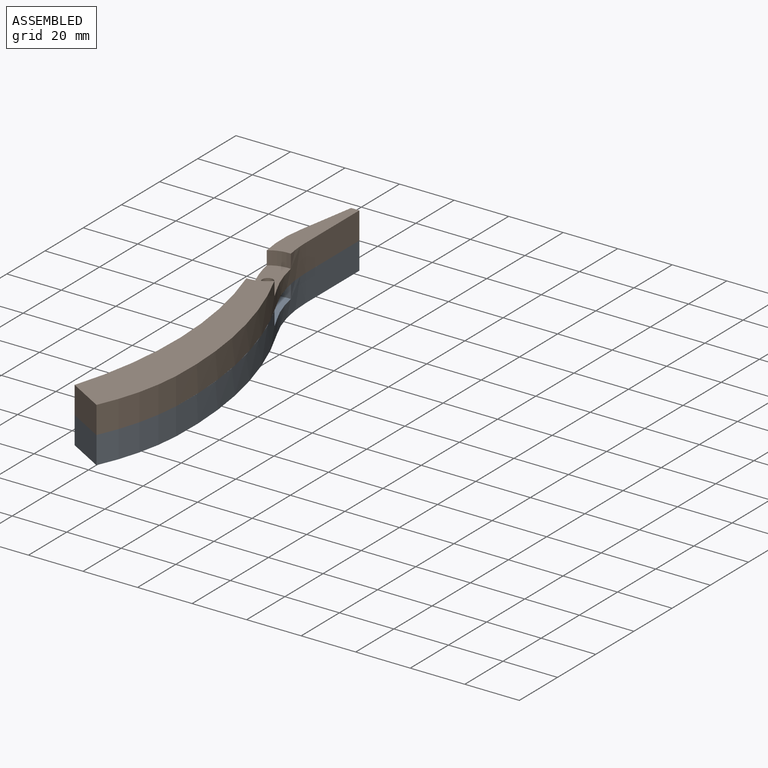
[diagram: assembled view]
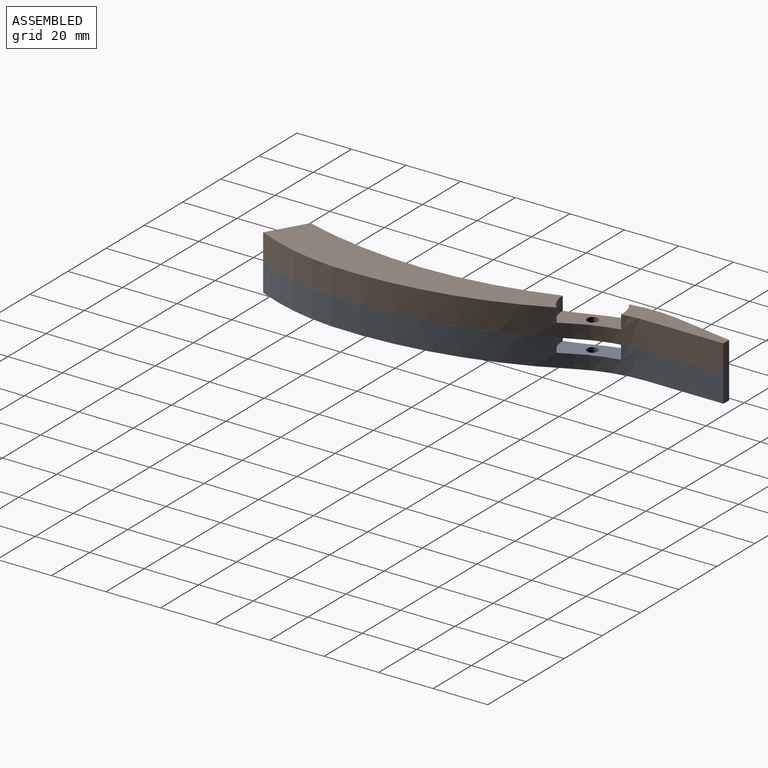
[diagram: assembled view, second angle]
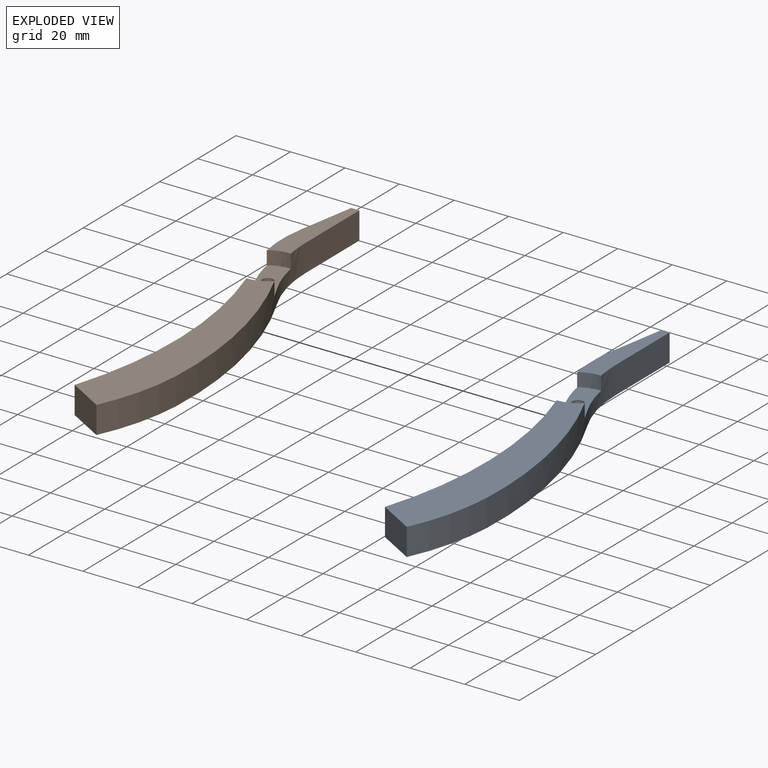
[diagram: exploded view]
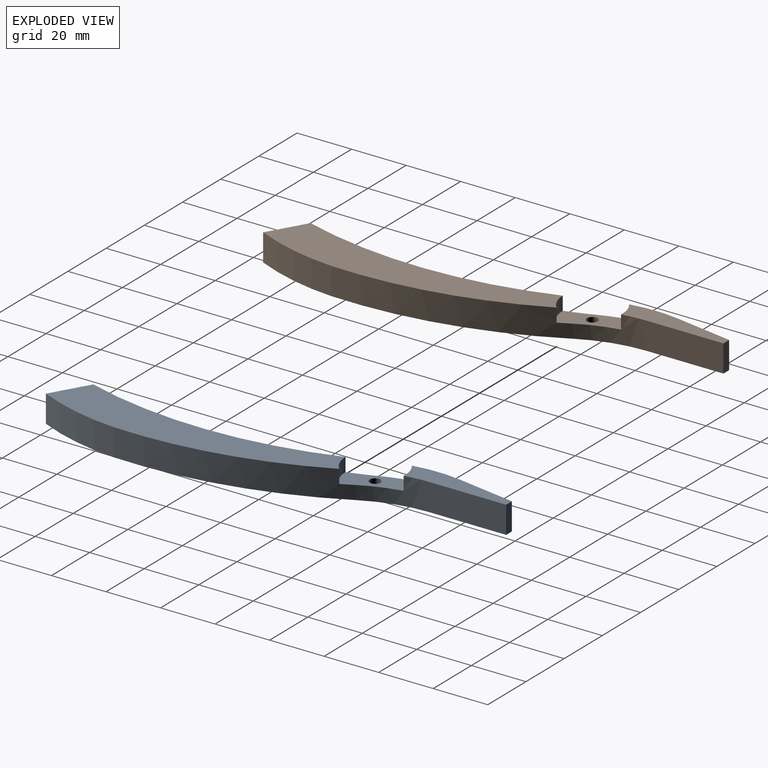
[diagram: exploded view, second angle]
ASSEMBLY  parts=2 mates=3
PART A: 18 faces, bbox 30x158.6x10 mm
  f0: plane 158.56x30.02mm, normal (0,0,-1), area 1723.7mm2, adj f6,f7,f8,f9,f11,f12,f13,f14
  f1: plane 102.87x22.77mm, normal (0,0,1), area 1347mm2, adj f3,f7,f11,f15,f17
  f2: plane 22x14.39mm, normal (0,0,1), area 154.5mm2, adj f3,f5,f10,f11,f12,f13,f14,f16
  f3: cylinder r=11mm len=8mm, axis (0,0,1), area 44.5mm2, adj f1,f2,f11,f17
  f4: plane 39.18x8.17mm, normal (0,0,1), area 222.1mm2, adj f5,f6,f8,f9,f10,f13,f16
  f5: cylinder r=11mm len=6.07mm, axis (0,0,1), area 31.5mm2, adj f2,f4,f10,f16
  f6: plane 21.58x10mm, normal (-0.99,0.17,0), area 218.9mm2, adj f0,f4,f9,f13
  f7: plane 13.52x10mm, normal (-0.5,-0.86,0), area 156.6mm2, adj f0,f1,f15,f17
  f8: plane 28.16x10mm, normal (1,0,0), area 281.6mm2, adj f0,f4,f9,f16
  f9: plane 10x3mm, normal (0,1,0), area 30mm2, adj f0,f4,f6,f8
  f10: plane 5x1.24mm, normal (0.56,-0.83,0), area 7.5mm2, adj f2,f4,f5,f13
  f11: cylinder r=150mm len=76.85mm, axis (0,0,-1), area 771.3mm2, adj f0,f1,f2,f3,f15,f16
  f12: cylinder r=100mm len=10.08mm, axis (0,0,-1), area 53.4mm2, adj f0,f2,f13,f17
  f13: cylinder r=50mm len=27.34mm, axis (0,0,-1), area 227.8mm2, adj f0,f2,f4,f6,f10,f12
  f14: cylinder r=2mm len=5mm, axis (0,0,1), area 62.8mm2, adj f0,f2
  f15: cylinder r=85.21mm len=30.44mm, axis (0,0,1), area 316.1mm2, adj f0,f1,f7,f11
  f16: cylinder r=50mm len=23.11mm, axis (0,0,-1), area 164.7mm2, adj f0,f2,f4,f5,f8,f11
  f17: cylinder r=146.99mm len=91.66mm, axis (0,0,1), area 932.3mm2, adj f0,f1,f3,f7,f12
PART B: same geometry as A
PLACE A t=(-11.53,10.32,-17.52)mm
PLACE B t=(-11.53,10.32,-7.52)mm
MATE planar B.f8 <-> A.f8  axis (1,0,0) through (-11.53,44.24,-2.52)mm
MATE planar B.f0 <-> A.f1  axis (0,0,-1) through (-2.15,-35.51,-7.52)mm
MATE cylindrical A.f3 <-> B.f3  axis (0,0,1) through (-11.53,10.32,-10.02)mm
